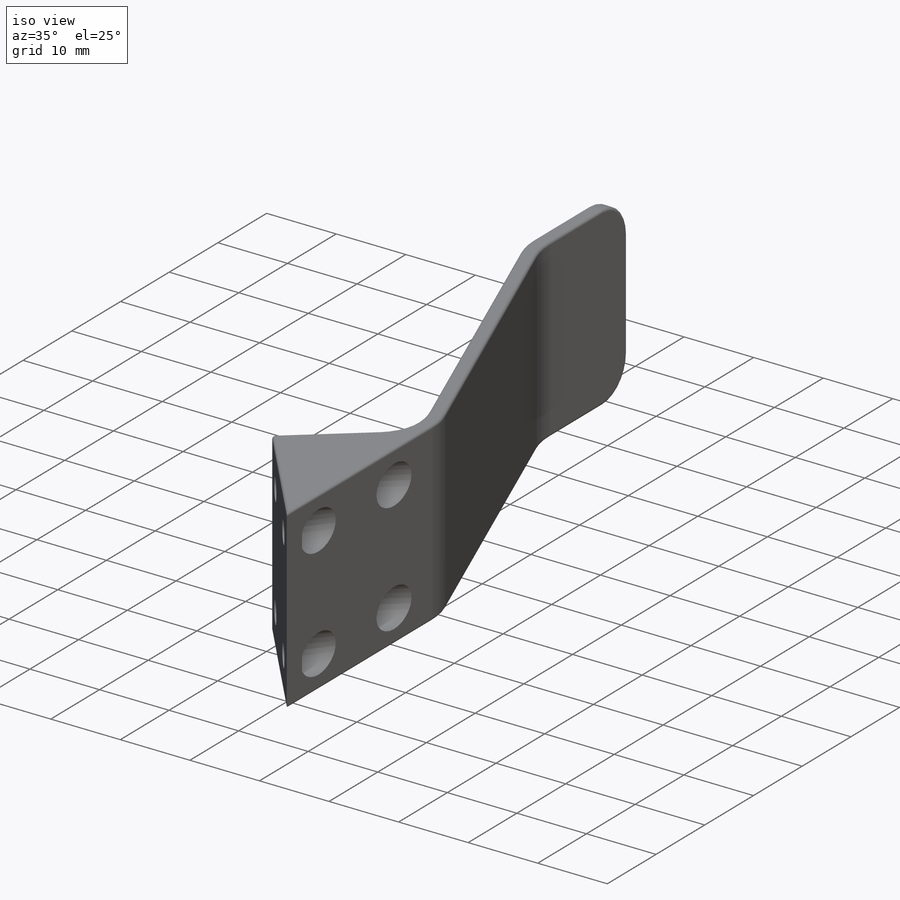
[diagram: iso view]
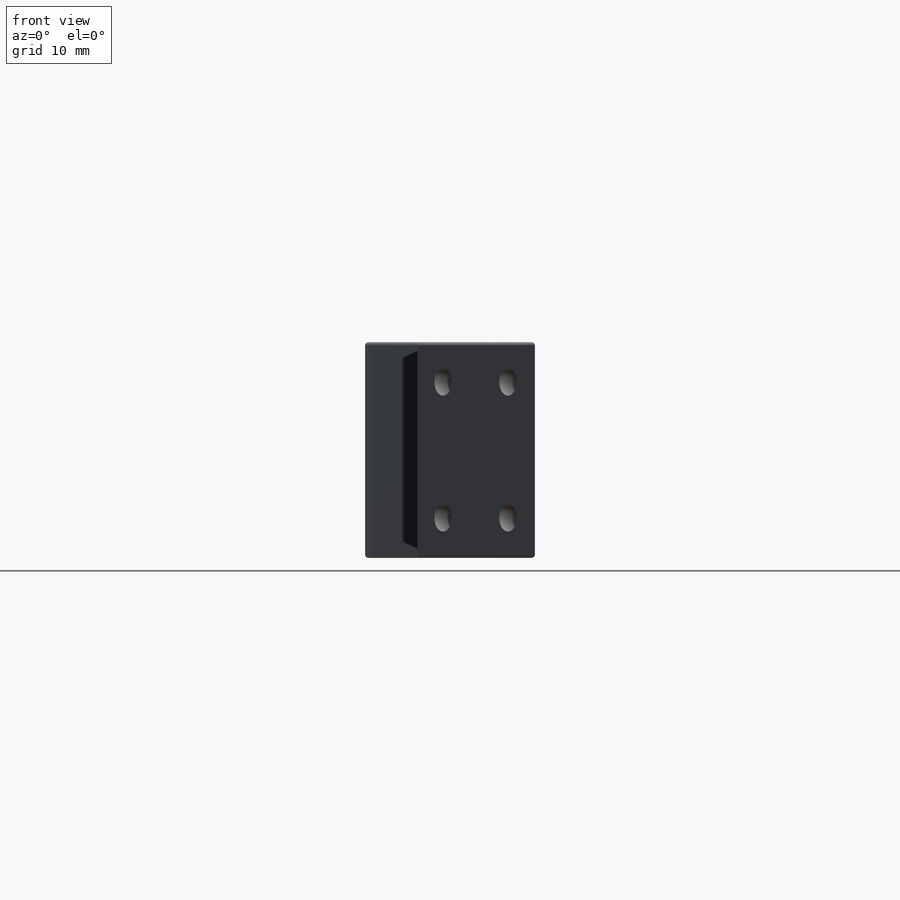
[diagram: front view]
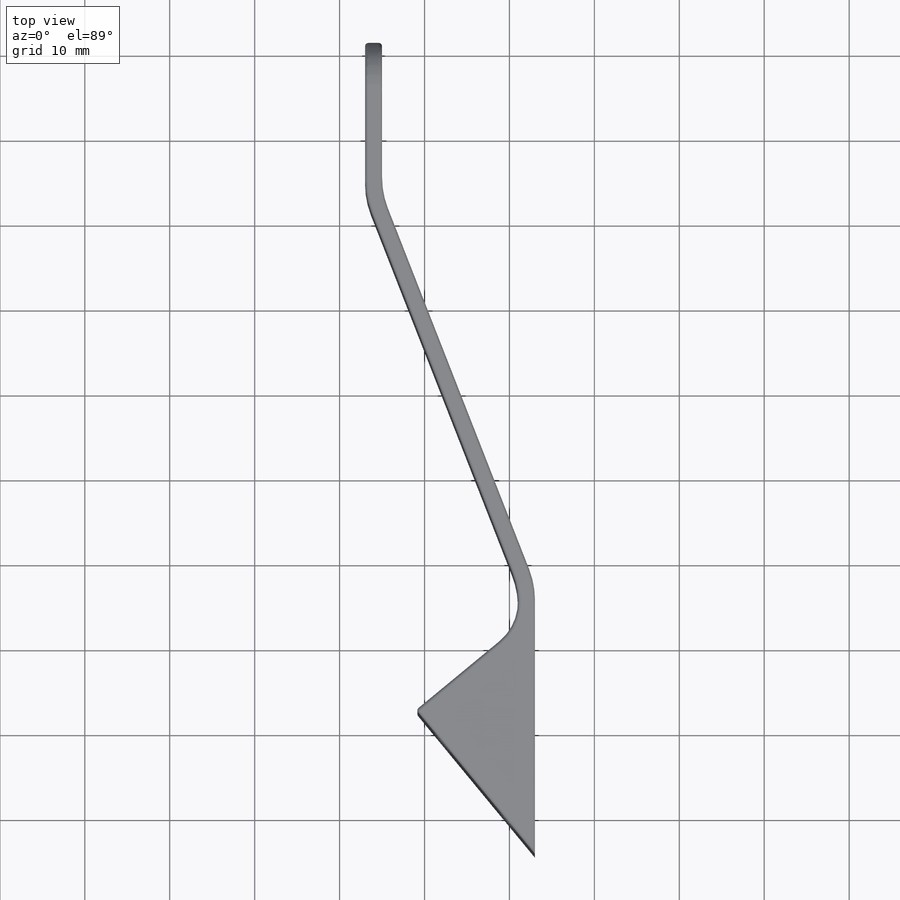
[diagram: top view]
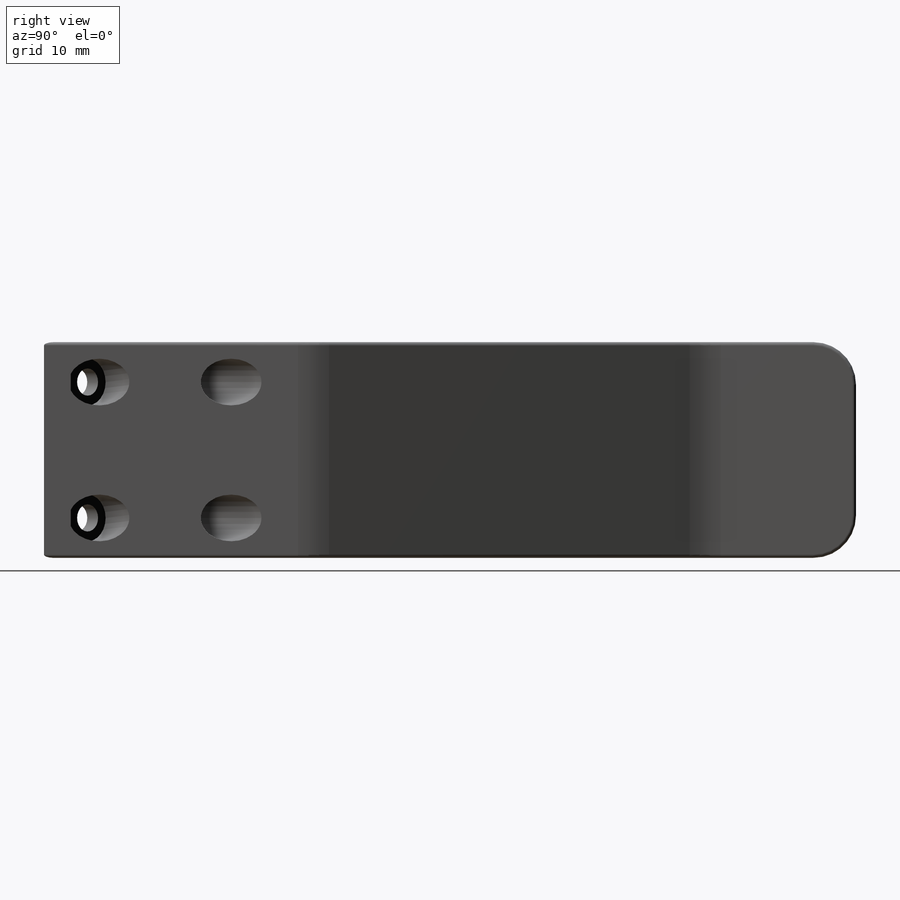
[diagram: right view]
SOLIDWORKS PART (.sldprt)
format: sldprt  version: not decoded by parser v0  size: 1,339,904 bytes
history: native  units: mm
features: sketch x9, cut_extrude x5, fillet x5, extrude x2, material x1, sweep x1 (+13 scaffold rows collapsed)
feature tree (36):
  scaffold x13  (default folders/planes/origin — collapsed)
  material  "Material <not specified>"
  sketch  "Sketch1"  dims[D1=21.0mm D2=2.0mm D3=25.4mm]
  sketch  "Sketch2"  dims[c1.D1=4.0mm c1.D2=18.0mm c1.D3=70.0mm c1.D4=64.0mm c2.D3=121.2mm]
  sweep  "Sweep1"
  sketch  "Sketch4"  dims[D1=5.0mm]
  cut_extrude  "Cut-Extrude2"  [1 undecoded]
  sketch  "Sketch5"  dims[c1.D1=22.0mm c1.D2=10.0mm c2.D1=24.0mm c2.D2=20.65mm c2.D3=12.0mm c3.D1=22.0mm c3.D2=~15.746854mm c4.D1=~18.857143mm c4.D2=14.45mm]
  extrude  "Boss-Extrude2"  [1 undecoded]
  sketch  "Sketch6"
  extrude  "Boss-Extrude4"  [1 undecoded]
  fillet  "Fillet1"  Radius=5mm
  sketch  "Sketch8"
  cut_extrude  "Cut-Extrude3"  [1 undecoded]
  sketch  "Sketch9"  dims[D1=2.9mm D2=5.5mm D3=12.0mm D4=16.0mm D5=11.0mm]
  cut_extrude  "Cut-Extrude4"  Depth=2mm
  sketch  "Sketch10"  dims[D1=5.2mm]
  cut_extrude  "Cut-Extrude5"  [1 undecoded]
  sketch  "Sketch11"  dims[D1=~14.890281mm]
  cut_extrude  "Cut-Extrude6"  [1 undecoded]
  fillet  "Fillet2"  Radius=10mm
  fillet  "Fillet5"  Radius=6mm
  fillet  "Fillet3"  Radius=0.4mm
  fillet  "Fillet6"  Radius=0.6mm
decode coverage: 13 of 22 modeling features carry decoded parameters
note: ~ marks probable driven/reference dimensions
note: 6 parameter values undecoded
summary: no parameter record found for 6 features
note: suppression state not decoded; provenance and decode notes live in map.json
